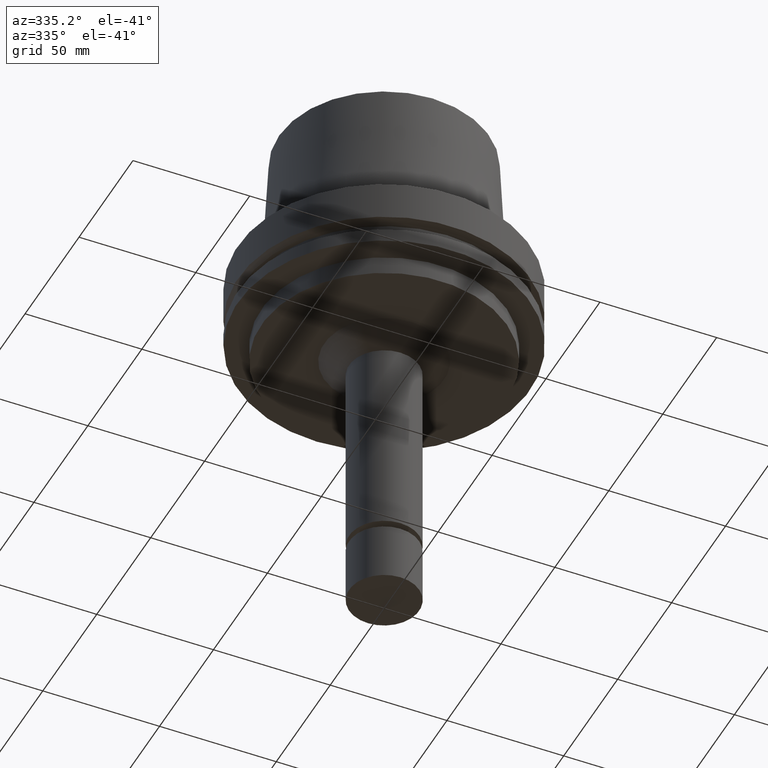
[diagram: clean part render]
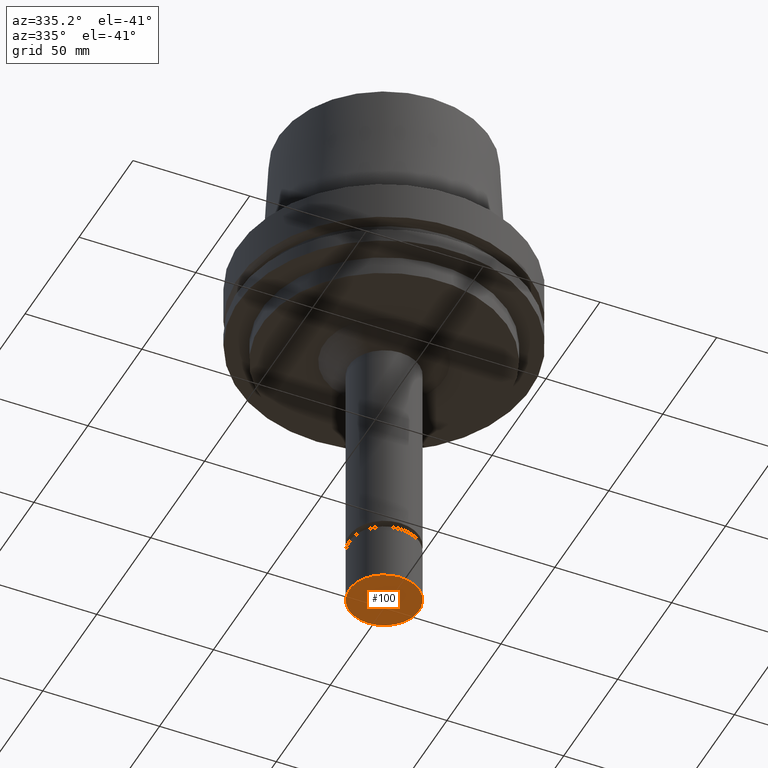
[diagram: same view with one face highlighted and labeled with its STEP entity id]
A machine part, auxiliary view. The second image highlights one B-rep face of the part: STEP entity #100.
In plain terms, the highlighted planar face has unit normal (0, 0, -1).
Its self-contained STEP definition (entity closure, byte-faithful):
#100=ADVANCED_FACE('Unnamed[1]',(#250),#251,.T.);
#174=EDGE_CURVE('Unnamed[1]',#364,#364,#365,.T.);
#250=FACE_OUTER_BOUND('',#456,.T.);
#251=PLANE('',#457);
#364=VERTEX_POINT('',#598);
#365=CIRCLE('',#599,15.0000000000001);
#456=EDGE_LOOP('',(#684));
#457=AXIS2_PLACEMENT_3D('',#685,#686,#687);
#598=CARTESIAN_POINT('',(9.79717439317883E-015,15.0,-160.0));
#599=AXIS2_PLACEMENT_3D('',#812,#813,#814);
#684=ORIENTED_EDGE('',*,*,#174,.T.);
#685=CARTESIAN_POINT('',(9.79717439317883E-015,7.49999999999996,-160.0));
#686=DIRECTION('',(6.12323399573677E-017,1.22464679914735E-016,-1.0));
#687=DIRECTION('',(-1.23259516440783E-032,1.0,1.22464679914735E-016));
#812=CARTESIAN_POINT('',(9.79717439317883E-015,-1.08576186927928E-013,-160.0));
#813=DIRECTION('',(6.12323399573677E-017,-7.06999605799552E-016,-1.0));
#814=DIRECTION('',(3.84640874812741E-032,1.0,-7.06999605799552E-016));